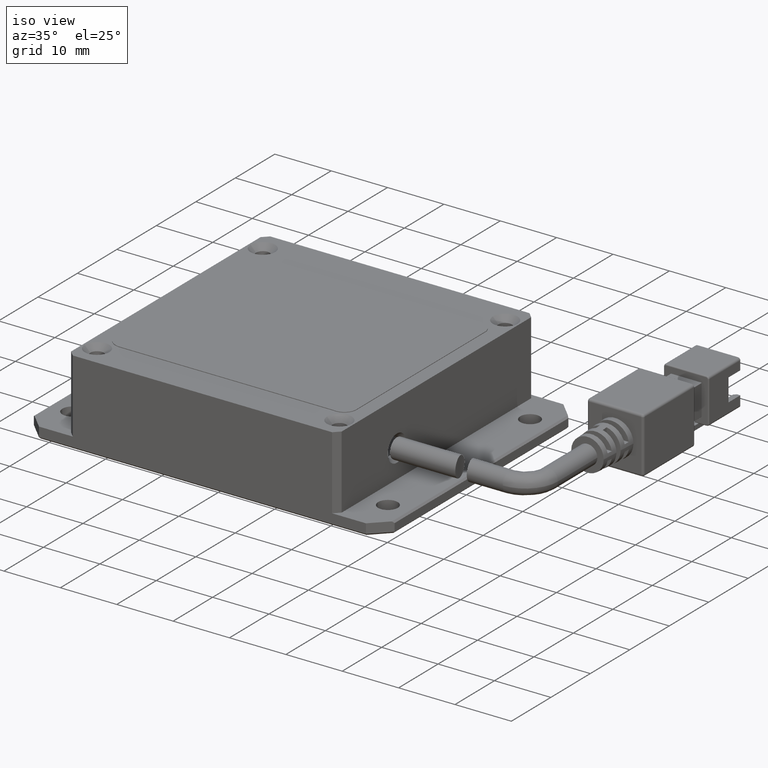
[diagram: clean part render]
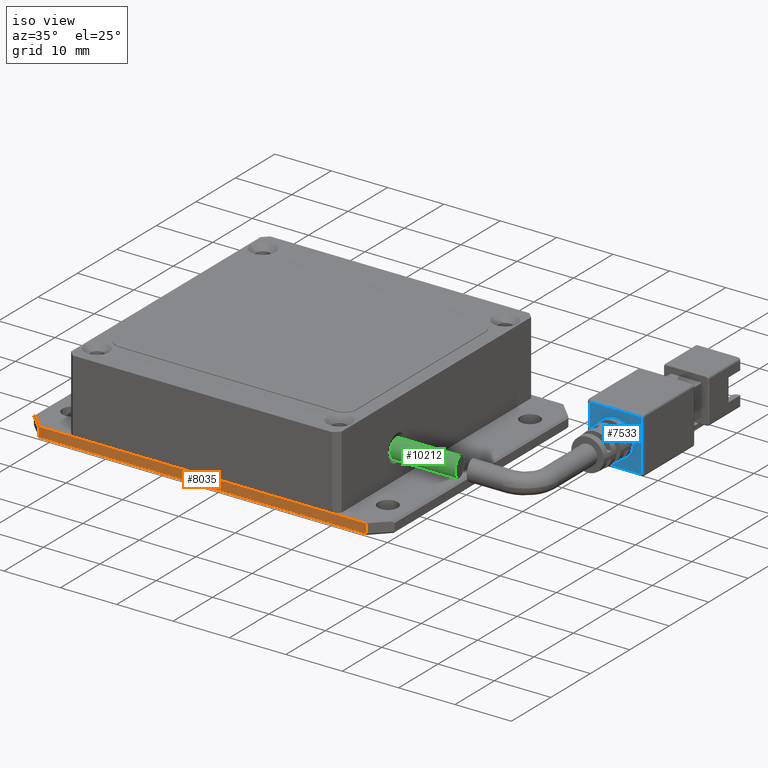
[diagram: same view with three faces highlighted in distinct colors, each labeled with its STEP entity id]
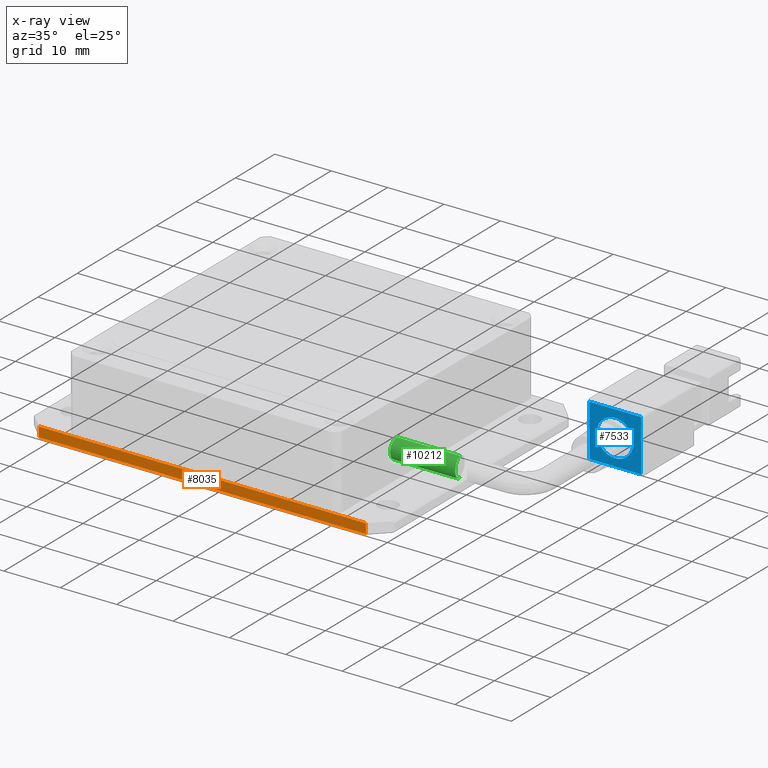
[diagram: x-ray of the same camera — body ghosted, the three highlighted faces saturated]
A machine part, iso view with three faces highlighted in distinct colors.
The next image is the same camera in x-ray (body ghosted, the three faces saturated) — at least one of them is partly hidden behind the body in this view.
Their STEP definitions:

[orange] entity #8035 — the highlighted planar face has unit normal (0, 1, 0).
#219 = CARTESIAN_POINT ( 'NONE',  ( 31.09316533027871900, -22.70904925544097000, -1.630813539765796300E-011 ) ) ;
#939 = CARTESIAN_POINT ( 'NONE',  ( 28.09316533027870500, -22.70904925544097700, -1.700000000016285600 ) ) ;
#1014 = CARTESIAN_POINT ( 'NONE',  ( -29.90683466972126300, -22.70904925544097000, -1.700000000016290900 ) ) ;
#1673 = LINE ( 'NONE', #20275, #17988 ) ;
#1839 = EDGE_CURVE ( 'NONE', #5687, #18270, #19078, .T. ) ;
#2295 = CARTESIAN_POINT ( 'NONE',  ( -29.90683466972125600, -22.70904925544097000, -1.630661751461648400E-011 ) ) ;
#2381 = EDGE_LOOP ( 'NONE', ( #6742, #14009, #5261, #4936 ) ) ;
#2933 = CARTESIAN_POINT ( 'NONE',  ( -29.90683466972125600, -22.70904925544097000, -2.000000000016308300 ) ) ;
#3040 = CARTESIAN_POINT ( 'NONE',  ( 31.09316533027871900, -22.70904925544097000, -2.000000000016308300 ) ) ;
#4691 = DIRECTION ( 'NONE',  ( 0.0000000000000000000, 0.0000000000000000000, -1.000000000000000000 ) ) ;
#4936 = ORIENTED_EDGE ( 'NONE', *, *, #12548, .F. ) ;
#5261 = ORIENTED_EDGE ( 'NONE', *, *, #1839, .F. ) ;
#5503 = DIRECTION ( 'NONE',  ( 0.0000000000000000000, 0.0000000000000000000, -1.000000000000000000 ) ) ;
#5687 = VERTEX_POINT ( 'NONE', #2295 ) ;
#6084 = FACE_OUTER_BOUND ( 'NONE', #2381, .T. ) ;
#6226 = EDGE_CURVE ( 'NONE', #18270, #15002, #16182, .T. ) ;
#6550 = VECTOR ( 'NONE', #8199, 1000.000000000000000 ) ;
#6742 = ORIENTED_EDGE ( 'NONE', *, *, #15137, .F. ) ;
#6971 = CARTESIAN_POINT ( 'NONE',  ( 28.09316533027870500, -22.70904925544097000, -2.000000000016308300 ) ) ;
#7831 = VECTOR ( 'NONE', #5503, 1000.000000000000000 ) ;
#8035 = ADVANCED_FACE ( 'NONE', ( #6084 ), #17222, .F. ) ;
#8199 = DIRECTION ( 'NONE',  ( 1.000000000000000000, 0.0000000000000000000, 0.0000000000000000000 ) ) ;
#8467 = AXIS2_PLACEMENT_3D ( 'NONE', #3040, #14145, #4691 ) ;
#10858 = DIRECTION ( 'NONE',  ( -1.000000000000000000, 0.0000000000000000000, 0.0000000000000000000 ) ) ;
#11182 = VECTOR ( 'NONE', #12425, 1000.000000000000000 ) ;
#11671 = LINE ( 'NONE', #2933, #11182 ) ;
#12425 = DIRECTION ( 'NONE',  ( -0.0000000000000000000, -0.0000000000000000000, 1.000000000000000000 ) ) ;
#12548 = EDGE_CURVE ( 'NONE', #19283, #5687, #11671, .T. ) ;
#13684 = CARTESIAN_POINT ( 'NONE',  ( 28.09316533027870800, -22.70904925544097000, -1.630813539765796300E-011 ) ) ;
#14009 = ORIENTED_EDGE ( 'NONE', *, *, #6226, .F. ) ;
#14145 = DIRECTION ( 'NONE',  ( 0.0000000000000000000, 1.000000000000000000, 0.0000000000000000000 ) ) ;
#15002 = VERTEX_POINT ( 'NONE', #939 ) ;
#15137 = EDGE_CURVE ( 'NONE', #15002, #19283, #1673, .T. ) ;
#16182 = LINE ( 'NONE', #6971, #7831 ) ;
#17222 = PLANE ( 'NONE',  #8467 ) ;
#17988 = VECTOR ( 'NONE', #10858, 1000.000000000000000 ) ;
#18270 = VERTEX_POINT ( 'NONE', #13684 ) ;
#19078 = LINE ( 'NONE', #219, #6550 ) ;
#19283 = VERTEX_POINT ( 'NONE', #1014 ) ;
#20275 = CARTESIAN_POINT ( 'NONE',  ( 31.09316533027871900, -22.70904925544097000, -1.700000000016287600 ) ) ;

[blue] entity #7533 — the highlighted planar face has unit normal (-0, 1, -0).
#248 = EDGE_CURVE ( 'NONE', #3320, #10531, #9838, .T. ) ;
#618 = VERTEX_POINT ( 'NONE', #4304 ) ;
#1007 = CARTESIAN_POINT ( 'NONE',  ( 47.09316533027874400, 13.29095074455903400, 4.999999999983692200 ) ) ;
#1113 = CARTESIAN_POINT ( 'NONE',  ( 50.34316533027774900, 13.29095074455903400, 4.999999999983692200 ) ) ;
#1181 = EDGE_CURVE ( 'NONE', #19019, #12531, #15695, .T. ) ;
#1527 = DIRECTION ( 'NONE',  ( 1.000000000000000000, 3.081487911019577400E-033, 8.673617379884010800E-017 ) ) ;
#1938 = AXIS2_PLACEMENT_3D ( 'NONE', #1007, #18558, #2528 ) ;
#2187 = ORIENTED_EDGE ( 'NONE', *, *, #1181, .F. ) ;
#2240 = EDGE_CURVE ( 'NONE', #12531, #19019, #10169, .T. ) ;
#2528 = DIRECTION ( 'NONE',  ( 1.000000000000000000, 0.0000000000000000000, 0.0000000000000000000 ) ) ;
#2568 = EDGE_CURVE ( 'NONE', #13518, #618, #15058, .T. ) ;
#3320 = VERTEX_POINT ( 'NONE', #5258 ) ;
#3644 = ORIENTED_EDGE ( 'NONE', *, *, #2568, .F. ) ;
#4146 = ORIENTED_EDGE ( 'NONE', *, *, #2240, .F. ) ;
#4304 = CARTESIAN_POINT ( 'NONE',  ( 42.49316533027873500, 13.29095074455903400, 9.599999999983701600 ) ) ;
#4631 = DIRECTION ( 'NONE',  ( 3.081487911019577400E-033, -1.000000000000000000, 2.672764710092188000E-049 ) ) ;
#4671 = VECTOR ( 'NONE', #10373, 1000.000000000000000 ) ;
#4701 = CARTESIAN_POINT ( 'NONE',  ( 43.84316533027973200, 13.29095074455903400, 4.999999999983691300 ) ) ;
#4994 = CARTESIAN_POINT ( 'NONE',  ( 52.09316533027873000, 13.29095074455903400, 9.599999999983701600 ) ) ;
#5207 = ORIENTED_EDGE ( 'NONE', *, *, #9507, .F. ) ;
#5258 = CARTESIAN_POINT ( 'NONE',  ( 51.69316533027566900, 13.29095074455903400, 9.599999999983701600 ) ) ;
#6085 = VECTOR ( 'NONE', #19154, 1000.000000000000000 ) ;
#6967 = CARTESIAN_POINT ( 'NONE',  ( 51.69316533027873100, 13.29095074455903400, 0.3999999999836998400 ) ) ;
#7533 = ADVANCED_FACE ( 'NONE', ( #15250, #19404 ), #10977, .F. ) ;
#8089 = VECTOR ( 'NONE', #11432, 1000.000000000000000 ) ;
#8570 = LINE ( 'NONE', #9821, #8089 ) ;
#8693 = AXIS2_PLACEMENT_3D ( 'NONE', #14094, #4631, #15671 ) ;
#8987 = EDGE_CURVE ( 'NONE', #10531, #13518, #8570, .T. ) ;
#9507 = EDGE_CURVE ( 'NONE', #618, #3320, #10743, .T. ) ;
#9821 = CARTESIAN_POINT ( 'NONE',  ( 52.09316533027873000, 13.29095074455903400, 0.3999999999836998400 ) ) ;
#9838 = LINE ( 'NONE', #10503, #4671 ) ;
#10169 = CIRCLE ( 'NONE', #8693, 3.249999999999010600 ) ;
#10373 = DIRECTION ( 'NONE',  ( 8.673617379884010800E-017, 0.0000000000000000000, -1.000000000000000000 ) ) ;
#10503 = CARTESIAN_POINT ( 'NONE',  ( 51.69316533027873100, 13.29095074455903400, -1.629946178027807900E-011 ) ) ;
#10531 = VERTEX_POINT ( 'NONE', #6967 ) ;
#10743 = LINE ( 'NONE', #4994, #6085 ) ;
#10853 = VECTOR ( 'NONE', #14619, 1000.000000000000000 ) ;
#10977 = PLANE ( 'NONE',  #12134 ) ;
#11046 = DIRECTION ( 'NONE',  ( -3.081487911019577400E-033, 1.000000000000000000, -2.672764710092188000E-049 ) ) ;
#11178 = EDGE_LOOP ( 'NONE', ( #4146, #2187 ) ) ;
#11432 = DIRECTION ( 'NONE',  ( -1.000000000000000000, -3.081487911019577400E-033, -8.673617379884010800E-017 ) ) ;
#12134 = AXIS2_PLACEMENT_3D ( 'NONE', #20472, #11046, #1527 ) ;
#12531 = VERTEX_POINT ( 'NONE', #1113 ) ;
#12835 = EDGE_LOOP ( 'NONE', ( #3644, #19403, #18446, #5207 ) ) ;
#13518 = VERTEX_POINT ( 'NONE', #16700 ) ;
#14094 = CARTESIAN_POINT ( 'NONE',  ( 47.09316533027874400, 13.29095074455903400, 4.999999999983692200 ) ) ;
#14619 = DIRECTION ( 'NONE',  ( -8.673617379884010800E-017, 0.0000000000000000000, 1.000000000000000000 ) ) ;
#15058 = LINE ( 'NONE', #17694, #10853 ) ;
#15250 = FACE_BOUND ( 'NONE', #11178, .T. ) ;
#15671 = DIRECTION ( 'NONE',  ( 1.000000000000000000, 0.0000000000000000000, 0.0000000000000000000 ) ) ;
#15695 = CIRCLE ( 'NONE', #1938, 3.249999999999010600 ) ;
#16700 = CARTESIAN_POINT ( 'NONE',  ( 42.49316533027872800, 13.29095074455903200, 0.3999999999837007300 ) ) ;
#17694 = CARTESIAN_POINT ( 'NONE',  ( 42.49316533027872800, 13.29095074455903200, 9.999999999983701900 ) ) ;
#18446 = ORIENTED_EDGE ( 'NONE', *, *, #248, .F. ) ;
#18558 = DIRECTION ( 'NONE',  ( 3.081487911019577400E-033, -1.000000000000000000, 2.672764710092188000E-049 ) ) ;
#19019 = VERTEX_POINT ( 'NONE', #4701 ) ;
#19154 = DIRECTION ( 'NONE',  ( 1.000000000000000000, 3.081487911019577400E-033, 8.673617379884010800E-017 ) ) ;
#19403 = ORIENTED_EDGE ( 'NONE', *, *, #8987, .F. ) ;
#19404 = FACE_OUTER_BOUND ( 'NONE', #12835, .T. ) ;
#20472 = CARTESIAN_POINT ( 'NONE',  ( 52.09316533027873000, 13.29095074455903400, -1.629946178027807900E-011 ) ) ;

[green] entity #10212 — the highlighted cylindrical surface (edge-blend (fillet) strip) has radius 1.75 mm, axis along (-1, -0, 0).
#574 = ORIENTED_EDGE ( 'NONE', *, *, #19743, .F. ) ;
#903 = CARTESIAN_POINT ( 'NONE',  ( 23.09316533027874000, -7.709049255440968200, 4.999999999983692200 ) ) ;
#1380 = AXIS2_PLACEMENT_3D ( 'NONE', #18854, #6296, #17355 ) ;
#1481 = CARTESIAN_POINT ( 'NONE',  ( 34.64986748201158000, -9.411282725181825600, 4.533076718571429400 ) ) ;
#1487 = FACE_OUTER_BOUND ( 'NONE', #3917, .T. ) ;
#1539 = CARTESIAN_POINT ( 'NONE',  ( 34.42873214433576800, -8.475998781282113400, 6.577068706638403500 ) ) ;
#2399 = VECTOR ( 'NONE', #8155, 1000.000000000000000 ) ;
#2489 = DIRECTION ( 'NONE',  ( 0.0000000000000000000, 0.0000000000000000000, 1.000000000000000000 ) ) ;
#2625 = CIRCLE ( 'NONE', #7317, 1.749999999999999800 ) ;
#3019 = CARTESIAN_POINT ( 'NONE',  ( 34.29449603690850500, -7.935041597999716400, 3.261020609549650100 ) ) ;
#3076 = CARTESIAN_POINT ( 'NONE',  ( 34.66003263948368800, -9.459177063560549200, 5.113738040289639700 ) ) ;
#3158 = CARTESIAN_POINT ( 'NONE',  ( 34.29447871569624300, -7.936980781243422100, 6.749999999983696600 ) ) ;
#3917 = EDGE_LOOP ( 'NONE', ( #574, #11301, #7308, #16518 ) ) ;
#4577 = CARTESIAN_POINT ( 'NONE',  ( 34.26694792122454900, -7.823009240175126800, 3.249999999984801900 ) ) ;
#4664 = CARTESIAN_POINT ( 'NONE',  ( 34.37633946853516400, -8.265026321970314200, 3.336784970087286700 ) ) ;
#4731 = CARTESIAN_POINT ( 'NONE',  ( 34.64760298720358400, -9.401784739550331300, 5.458970932065691200 ) ) ;
#5930 = CARTESIAN_POINT ( 'NONE',  ( 34.23941991828349500, -7.709049255440968200, 6.749999999983692200 ) ) ;
#6271 = CARTESIAN_POINT ( 'NONE',  ( 34.45328980764789200, -8.575240878343995700, 3.475181037135812300 ) ) ;
#6296 = DIRECTION ( 'NONE',  ( -1.000000000000000000, -3.081487911019577400E-033, 2.465190328815661900E-031 ) ) ;
#6332 = CARTESIAN_POINT ( 'NONE',  ( 34.62029946968888100, -9.278431874635691300, 5.782907278458969500 ) ) ;
#7308 = ORIENTED_EDGE ( 'NONE', *, *, #8134, .T. ) ;
#7317 = AXIS2_PLACEMENT_3D ( 'NONE', #903, #11993, #2489 ) ;
#7850 = CARTESIAN_POINT ( 'NONE',  ( 34.52157531494713500, -8.855222336051255600, 3.672648453635925800 ) ) ;
#7936 = CARTESIAN_POINT ( 'NONE',  ( 34.57806024271008700, -9.093718713517471700, 6.076277941427007600 ) ) ;
#8124 = VERTEX_POINT ( 'NONE', #9644 ) ;
#8134 = EDGE_CURVE ( 'NONE', #8389, #19926, #10852, .T. ) ;
#8155 = DIRECTION ( 'NONE',  ( -1.000000000000000000, -3.081487911019577400E-033, 2.465190328815661900E-031 ) ) ;
#8389 = VERTEX_POINT ( 'NONE', #5930 ) ;
#8877 = DIRECTION ( 'NONE',  ( -1.000000000000000000, -3.081487911019577400E-033, 2.465190328815661900E-031 ) ) ;
#9129 = CARTESIAN_POINT ( 'NONE',  ( 34.23941991828349500, -7.709049255440967300, 3.249999999983691700 ) ) ;
#9424 = CARTESIAN_POINT ( 'NONE',  ( 34.57753194988943300, -9.091445301735527500, 3.920758176530361200 ) ) ;
#9482 = CARTESIAN_POINT ( 'NONE',  ( 34.52174498554524000, -8.855918677427176500, 6.326857748122291600 ) ) ;
#9644 = CARTESIAN_POINT ( 'NONE',  ( 23.09316533027874000, -7.709049255440968200, 3.249999999983691700 ) ) ;
#10212 = ADVANCED_FACE ( 'NONE', ( #1487 ), #20025, .T. ) ;
#10852 = LINE ( 'NONE', #18992, #2399 ) ;
#10990 = CARTESIAN_POINT ( 'NONE',  ( 34.61999699716406600, -9.277086367278601000, 4.214481922561160100 ) ) ;
#11073 = CARTESIAN_POINT ( 'NONE',  ( 34.45391777090151200, -8.577788129586061000, 6.523369454747216500 ) ) ;
#11301 = ORIENTED_EDGE ( 'NONE', *, *, #12205, .T. ) ;
#11993 = DIRECTION ( 'NONE',  ( 1.000000000000000000, 3.081487911019577400E-033, -2.465190328815661900E-031 ) ) ;
#12205 = EDGE_CURVE ( 'NONE', #20117, #8389, #17108, .T. ) ;
#12587 = LINE ( 'NONE', #16699, #16271 ) ;
#12595 = CARTESIAN_POINT ( 'NONE',  ( 34.65994941824069300, -9.458790380676692400, 4.766674602902526200 ) ) ;
#12659 = CARTESIAN_POINT ( 'NONE',  ( 34.35053269826448700, -8.161106165656571300, 6.705747247589895800 ) ) ;
#13657 = EDGE_CURVE ( 'NONE', #19926, #8124, #2625, .T. ) ;
#14118 = CARTESIAN_POINT ( 'NONE',  ( 34.34906705146954700, -8.155549060507681200, 3.304193471123476400 ) ) ;
#14181 = CARTESIAN_POINT ( 'NONE',  ( 34.65755491263965400, -9.447613633495629800, 5.231087946485898100 ) ) ;
#14243 = CARTESIAN_POINT ( 'NONE',  ( 34.23941991828349500, -7.709049255440968200, 6.749999999983692200 ) ) ;
#15635 = CARTESIAN_POINT ( 'NONE',  ( 34.23941991828349500, -7.709049255440967300, 3.249999999983691700 ) ) ;
#15692 = CARTESIAN_POINT ( 'NONE',  ( 34.42856060406452900, -8.475306284021415900, 3.422582838820881900 ) ) ;
#15774 = CARTESIAN_POINT ( 'NONE',  ( 34.64020736969350600, -9.367897425893252400, 5.569322719982777900 ) ) ;
#16271 = VECTOR ( 'NONE', #8877, 1000.000000000000000 ) ;
#16518 = ORIENTED_EDGE ( 'NONE', *, *, #13657, .T. ) ;
#16699 = CARTESIAN_POINT ( 'NONE',  ( 43.09316533027873700, -7.709049255440968200, 3.249999999983692200 ) ) ;
#17108 = B_SPLINE_CURVE_WITH_KNOTS ( 'NONE', 3,
 ( #15635, #4577, #3019, #14118, #4664, #15692, #6271, #17273, #7850, #18834, #9424, #20414, #10990, #1481, #12595, #3076, #14181, #4731, #15774, #6332, #17338, #7936, #18890, #9482, #20490, #11073, #1539, #12659, #3158, #14243 ),
 .UNSPECIFIED., .F., .F.,
 ( 4, 2, 2, 2, 2, 2, 2, 2, 2, 2, 2, 2, 2, 2, 4 ),
 ( 1.728500114022708000E-014, 0.0003467692703522315100, 0.0006935385406871780300, 0.001040307811022124500, 0.001387077081357071100, 0.001733846351692017800, 0.002080615622026963900, 0.002774154162696860800, 0.003120923433031809500, 0.003467692703366757300, 0.003814461973701706000, 0.004161231244036654200, 0.004508000514371602500, 0.004854769784706550700, 0.005548308325376451500 ),
 .UNSPECIFIED. ) ;
#17273 = CARTESIAN_POINT ( 'NONE',  ( 34.49970302478727300, -8.764795848950356600, 3.599728623663661900 ) ) ;
#17338 = CARTESIAN_POINT ( 'NONE',  ( 34.60769107911598000, -9.222475451182695800, 5.886129147123134500 ) ) ;
#17355 = DIRECTION ( 'NONE',  ( 0.0000000000000000000, 0.0000000000000000000, 1.000000000000000000 ) ) ;
#18105 = CARTESIAN_POINT ( 'NONE',  ( 23.09316533027874000, -7.709049255440968200, 6.749999999983692200 ) ) ;
#18834 = CARTESIAN_POINT ( 'NONE',  ( 34.56040030083728700, -9.018198552341244700, 3.833079704190962100 ) ) ;
#18854 = CARTESIAN_POINT ( 'NONE',  ( 43.09316533027873700, -7.709049255440968200, 4.999999999983692200 ) ) ;
#18890 = CARTESIAN_POINT ( 'NONE',  ( 34.56093870887545400, -9.020474812607666600, 6.164484419326620400 ) ) ;
#18992 = CARTESIAN_POINT ( 'NONE',  ( 43.09316533027873700, -7.709049255440968200, 6.749999999983692200 ) ) ;
#19743 = EDGE_CURVE ( 'NONE', #20117, #8124, #12587, .T. ) ;
#19926 = VERTEX_POINT ( 'NONE', #18105 ) ;
#20025 = CYLINDRICAL_SURFACE ( 'NONE', #1380, 1.749999999999999800 ) ;
#20117 = VERTEX_POINT ( 'NONE', #9129 ) ;
#20414 = CARTESIAN_POINT ( 'NONE',  ( 34.60736566569221400, -9.221039826487615400, 4.111368324109072600 ) ) ;
#20490 = CARTESIAN_POINT ( 'NONE',  ( 34.50027293188721700, -8.767141242688218500, 6.398500294470815100 ) ) ;